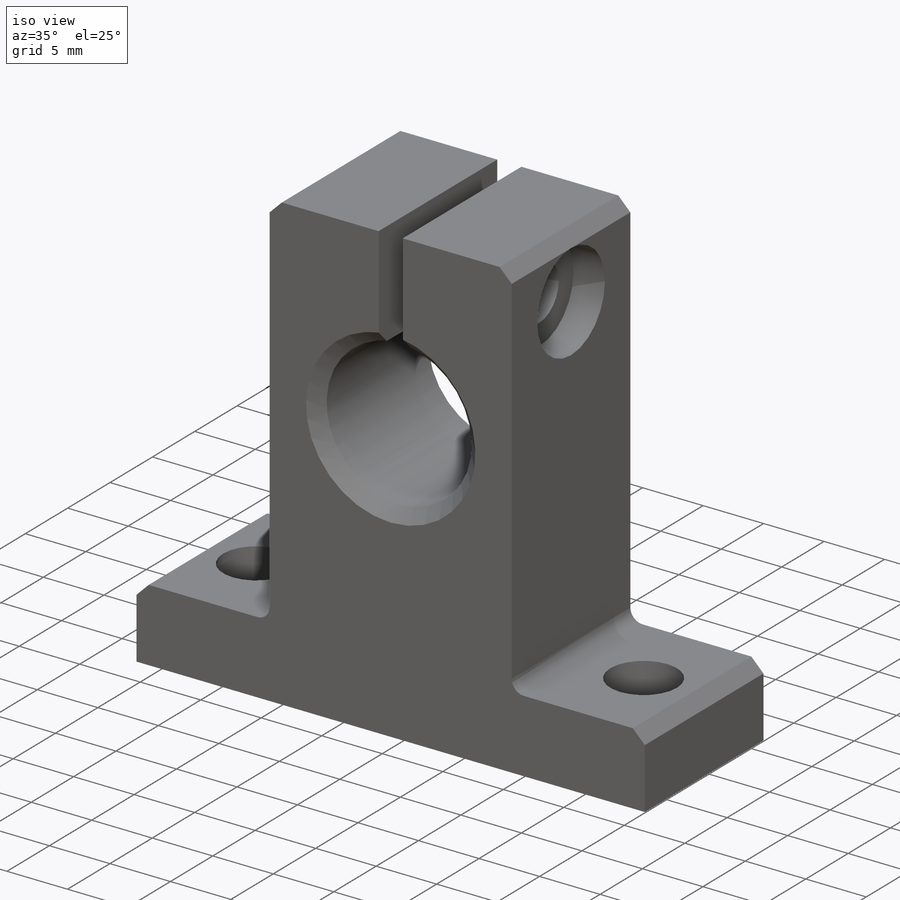
[diagram: iso view]
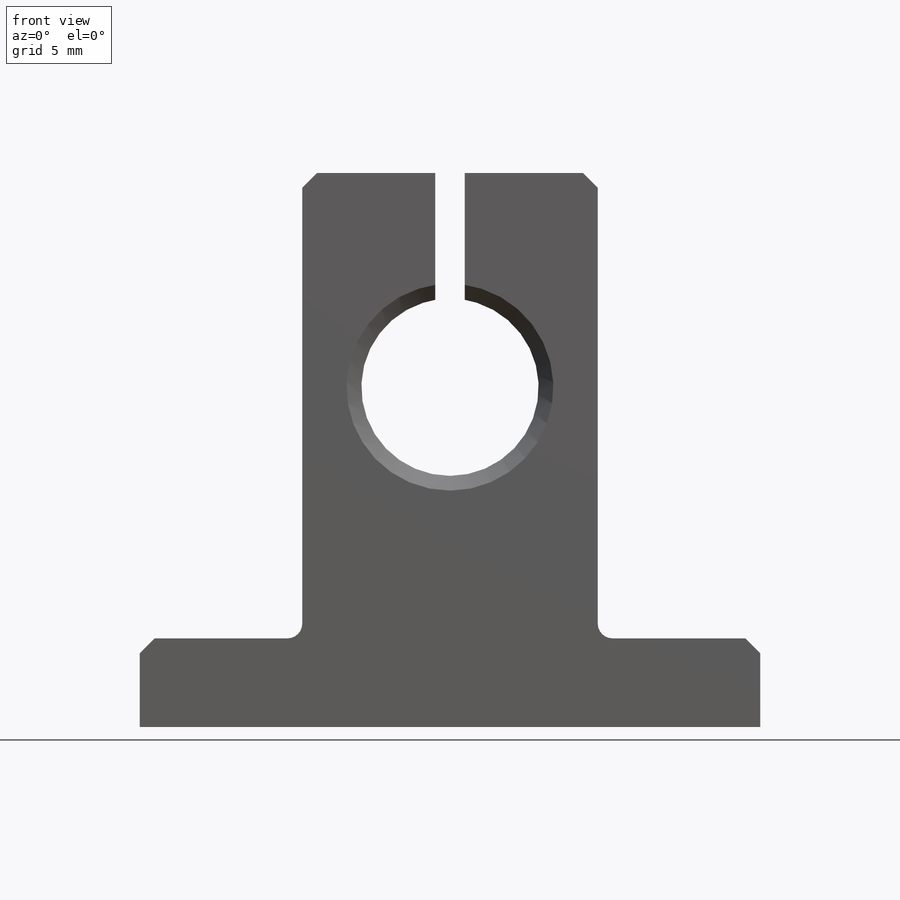
[diagram: front view]
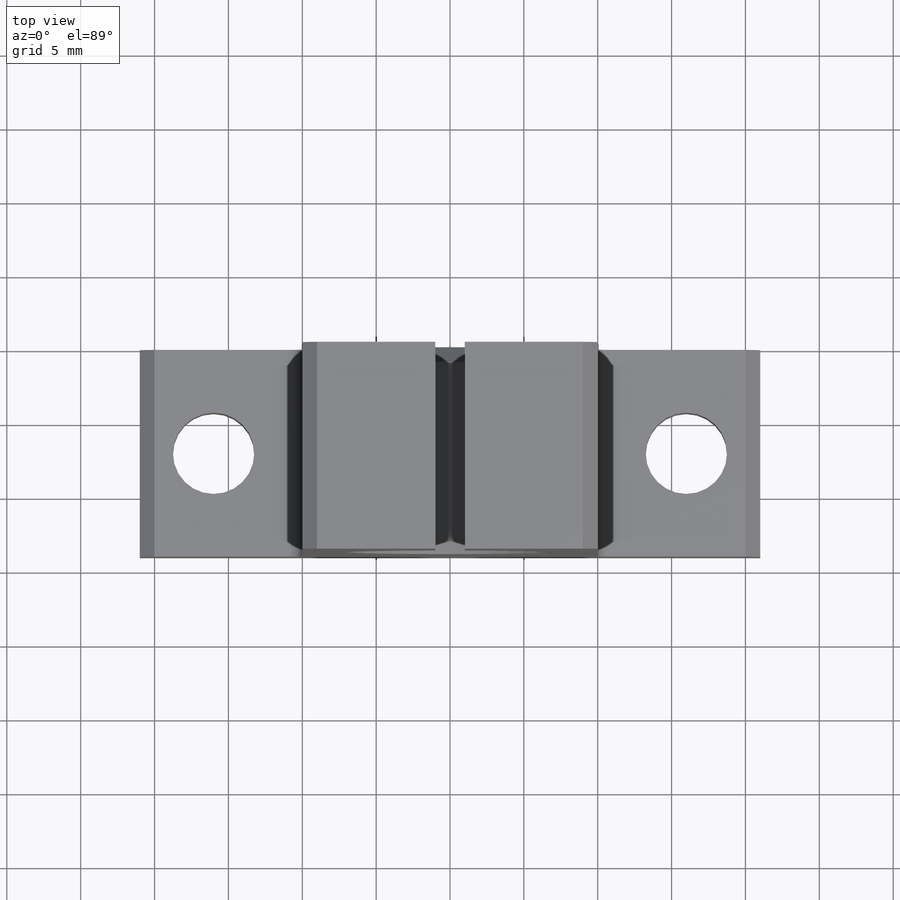
[diagram: top view]
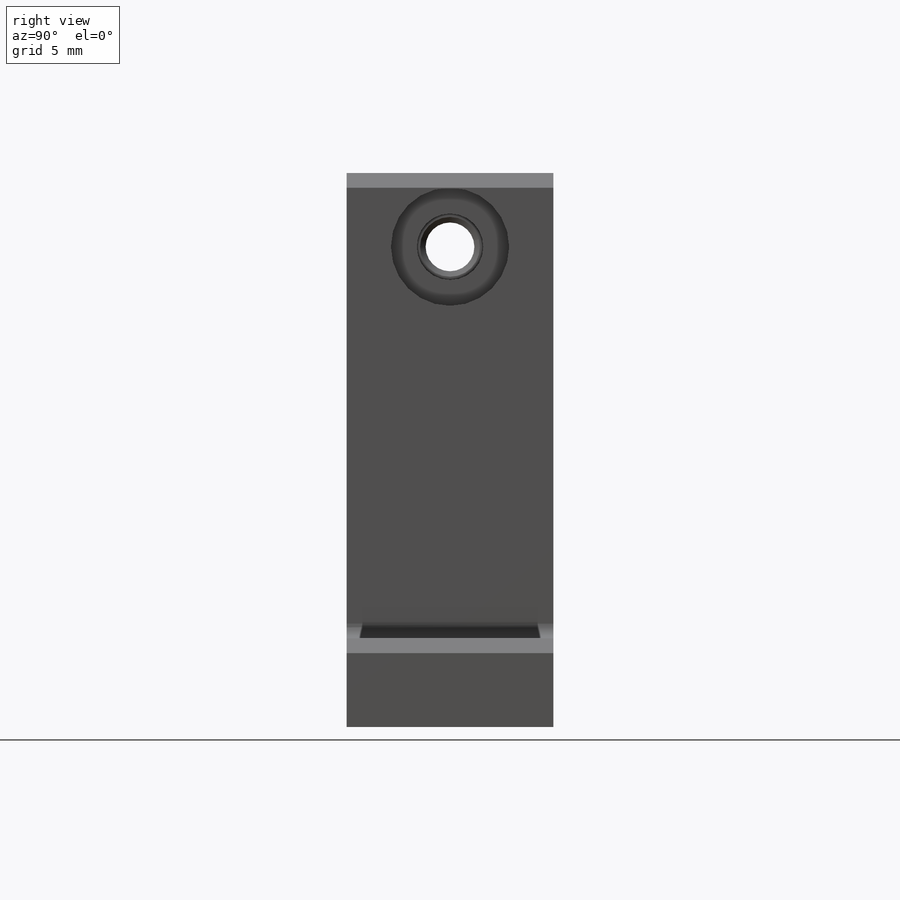
[diagram: right view]
SOLIDWORKS PART (.sldprt)
format: sldprt  version: not decoded by parser v0  size: 289,280 bytes
history: native  units: mm
features: sketch x7, plane x4, hole x3, material x1, extrude x1, fillet x1, chamfer x1 (+9 scaffold rows collapsed)
feature tree (27):
  scaffold x9  (default folders/planes/origin — collapsed)
  material  "Lega 1060"
  plane  "Piano frontale"
  plane  "Piano superiore"
  plane  "Piano destro"
  plane  "Piano1"
  sketch  "Schizzo10"  dims[D1=12.0mm D2=42.0mm D3=6.0mm D4=20.0mm D5=23.0mm D6=37.5mm D7=2.0mm]
  extrude  "Estrusione-Estrusione2"  Depth=14mm
  hole  "Foro Ø5.5 (5.5)-3"  Diameter=5.5mm Depth=6mm
  sketch  "Schizzo12"  dims[D1=32.0mm D2=16.0mm]
  sketch  "Schizzo11"  dims[hole-wizard template sketch: 60 standard entries collapsed; hole parameters kept: c18.Thru Hole Depth=6.0mm]
  hole  "Foro lamato per Vite M4 a testa cilindrica piana-1"  Diameter=4.5mm Depth=9mm
  sketch  "Schizzo14"  dims[D1=5.0mm]
  sketch  "Schizzo13"  dims[hole-wizard template sketch: 42 standard entries collapsed; hole parameters kept: c12.Thru Hole Depth=9.0mm c12.C'Bore Dia.=8.0mm c12.C'Bore Depth=2.6mm]
  hole  "Foro filettato M4-1"  Diameter=3.3mm Depth=20mm
  sketch  "Schizzo16"
  sketch  "Schizzo15"  dims[hole-wizard template sketch: 54 standard entries collapsed; hole parameters kept: c17.Thread Major Dia.=3.3mm c17.Thru Tap Drill Depth=20.0mm c17.Near C'Sink Dia.=4.05mm c17.D4=~3.666174mm c17.Near C'Sink Angle=120.0deg]
  fillet  "Raccordo1"  Radius=1mm
  chamfer  "Smusso1"  Distance=1mm Angle=45deg
decode coverage: 12 of 13 modeling features carry decoded parameters
note: ~ marks probable driven/reference dimensions
note: suppression state not decoded; provenance and decode notes live in map.json
